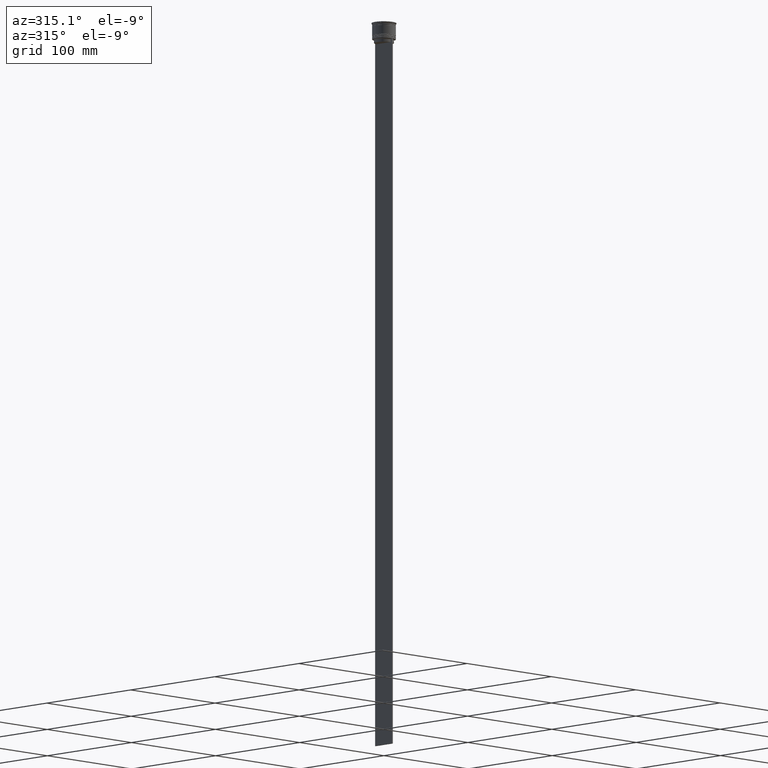
[diagram: clean part render]
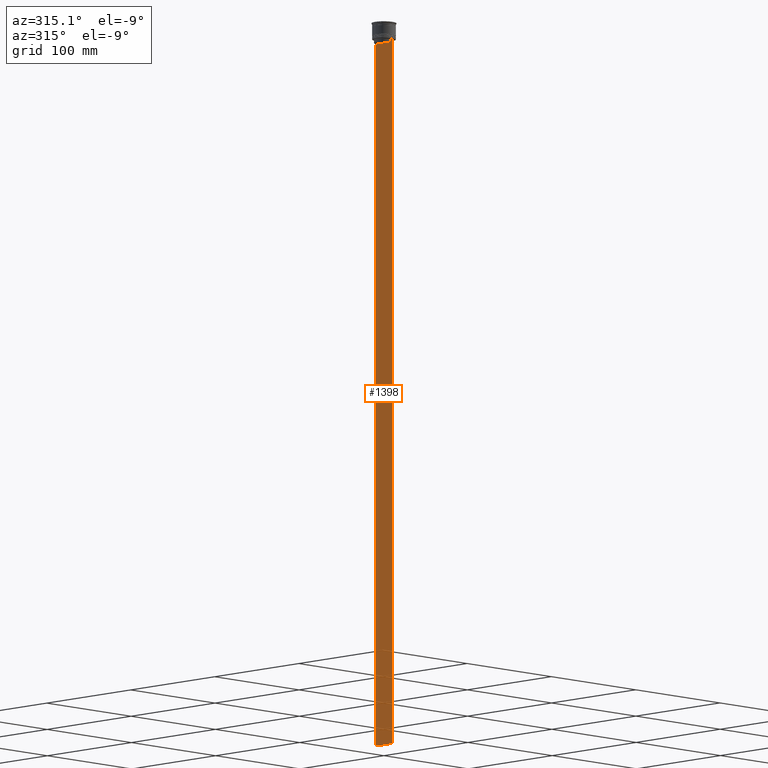
[diagram: same view with one face highlighted and labeled with its STEP entity id]
A machine part, auxiliary view. The second image highlights one B-rep face of the part: STEP entity #1398.
In plain terms, the highlighted planar face has unit normal (-1, 0, 0).
Its self-contained STEP definition (entity closure, byte-faithful):
#20 = VERTEX_POINT ( 'NONE', #281 ) ;
#43 = VERTEX_POINT ( 'NONE', #722 ) ;
#72 = ORIENTED_EDGE ( 'NONE', *, *, #1513, .F. ) ;
#88 = EDGE_CURVE ( 'NONE', #707, #43, #2531, .T. ) ;
#105 = EDGE_CURVE ( 'NONE', #1675, #403, #1651, .T. ) ;
#111 = CARTESIAN_POINT ( 'NONE',  ( -0.5000000000000000000, -10.00000000000000178, -614.0000000000000000 ) ) ;
#150 = ORIENTED_EDGE ( 'NONE', *, *, #88, .F. ) ;
#158 = VECTOR ( 'NONE', #2222, 1000.000000000000000 ) ;
#174 = EDGE_CURVE ( 'NONE', #707, #1900, #665, .T. ) ;
#215 = CARTESIAN_POINT ( 'NONE',  ( -0.5000000000000000000, -10.00000000000000178, 6.024984394500783047 ) ) ;
#240 = LINE ( 'NONE', #1833, #503 ) ;
#246 = DIRECTION ( 'NONE',  ( 0.000000000000000000, 0.000000000000000000, -1.000000000000000000 ) ) ;
#281 = CARTESIAN_POINT ( 'NONE',  ( -0.5000000000000000000, -10.00000000000000178, -14.00000000000000178 ) ) ;
#330 = VECTOR ( 'NONE', #839, 1000.000000000000000 ) ;
#403 = VERTEX_POINT ( 'NONE', #2348 ) ;
#406 = LINE ( 'NONE', #215, #1498 ) ;
#480 = ORIENTED_EDGE ( 'NONE', *, *, #1239, .F. ) ;
#503 = VECTOR ( 'NONE', #2670, 1000.000000000000000 ) ;
#560 = DIRECTION ( 'NONE',  ( 0.000000000000000000, -1.000000000000000000, 0.000000000000000000 ) ) ;
#598 = B_SPLINE_CURVE_WITH_KNOTS ( 'NONE', 3,
 ( #1161, #1981, #964, #2410 ),
 .UNSPECIFIED., .F., .F.,
 ( 4, 4 ),
 ( 0.03898465126933132324, 0.03969388910599660342 ),
 .UNSPECIFIED. ) ;
#633 = ORIENTED_EDGE ( 'NONE', *, *, #105, .F. ) ;
#634 = AXIS2_PLACEMENT_3D ( 'NONE', #1684, #2288, #1255 ) ;
#636 = DIRECTION ( 'NONE',  ( -0.000000000000000000, -0.000000000000000000, 1.000000000000000000 ) ) ;
#665 = LINE ( 'NONE', #2089, #1831 ) ;
#668 = ORIENTED_EDGE ( 'NONE', *, *, #2403, .F. ) ;
#707 = VERTEX_POINT ( 'NONE', #2161 ) ;
#722 = CARTESIAN_POINT ( 'NONE',  ( -0.5000000000000000000, 9.887365675446622149, -14.00000000000000178 ) ) ;
#749 = LINE ( 'NONE', #1984, #158 ) ;
#822 = ORIENTED_EDGE ( 'NONE', *, *, #2528, .F. ) ;
#831 = DIRECTION ( 'NONE',  ( 0.000000000000000000, -1.000000000000000000, 0.000000000000000000 ) ) ;
#839 = DIRECTION ( 'NONE',  ( 0.000000000000000000, -1.000000000000000000, 0.000000000000000000 ) ) ;
#875 = EDGE_CURVE ( 'NONE', #2470, #1098, #1349, .T. ) ;
#899 = CARTESIAN_POINT ( 'NONE',  ( -0.5000000000000000000, -10.00000000000000178, -614.0000000000000000 ) ) ;
#903 = CARTESIAN_POINT ( 'NONE',  ( -0.5000000000000000000, -8.385105843100616241, 0.000000000000000000 ) ) ;
#964 = CARTESIAN_POINT ( 'NONE',  ( -0.5000000000000000000, -8.719005764482790966, -14.16667454151159689 ) ) ;
#979 = VECTOR ( 'NONE', #560, 1000.000000000000000 ) ;
#997 = CARTESIAN_POINT ( 'NONE',  ( -0.5000000000000000000, 8.552060201981381837, -14.33334167021640226 ) ) ;
#1031 = EDGE_CURVE ( 'NONE', #403, #20, #2263, .T. ) ;
#1051 = EDGE_CURVE ( 'NONE', #1098, #2625, #240, .T. ) ;
#1095 = PLANE ( 'NONE',  #634 ) ;
#1098 = VERTEX_POINT ( 'NONE', #1813 ) ;
#1114 = VECTOR ( 'NONE', #636, 1000.000000000000000 ) ;
#1160 = VERTEX_POINT ( 'NONE', #1347 ) ;
#1161 = CARTESIAN_POINT ( 'NONE',  ( -0.5000000000000000000, -8.385105843100616241, -14.50000000000000000 ) ) ;
#1166 = VERTEX_POINT ( 'NONE', #899 ) ;
#1232 = CARTESIAN_POINT ( 'NONE',  ( -0.5000000000000000000, -10.00000000000000178, -14.00000000000000178 ) ) ;
#1239 = EDGE_CURVE ( 'NONE', #43, #2470, #2413, .T. ) ;
#1255 = DIRECTION ( 'NONE',  ( 0.000000000000000000, 0.000000000000000000, 1.000000000000000000 ) ) ;
#1257 = ORIENTED_EDGE ( 'NONE', *, *, #1649, .F. ) ;
#1303 = CARTESIAN_POINT ( 'NONE',  ( -0.5000000000000000000, -10.00000000000000178, -14.00000000000000178 ) ) ;
#1307 = EDGE_CURVE ( 'NONE', #2625, #2591, #749, .T. ) ;
#1347 = CARTESIAN_POINT ( 'NONE',  ( -0.5000000000000000000, -8.385105843100616241, -14.50000000000000000 ) ) ;
#1349 = B_SPLINE_CURVE_WITH_KNOTS ( 'NONE', 3,
 ( #1393, #2240, #997, #2416 ),
 .UNSPECIFIED., .F., .F.,
 ( 4, 4 ),
 ( 0.01511546479386908018, 0.01582316445439079997 ),
 .UNSPECIFIED. ) ;
#1388 = CARTESIAN_POINT ( 'NONE',  ( -0.5000000000000000000, 8.885943956609230199, -14.00000000000000178 ) ) ;
#1393 = CARTESIAN_POINT ( 'NONE',  ( -0.5000000000000000000, 8.885943956609230199, -14.00000000000000178 ) ) ;
#1398 = ADVANCED_FACE ( 'NONE', ( #2311 ), #1095, .T. ) ;
#1408 = VECTOR ( 'NONE', #831, 1000.000000000000000 ) ;
#1498 = VECTOR ( 'NONE', #2457, 1000.000000000000000 ) ;
#1513 = EDGE_CURVE ( 'NONE', #1166, #1900, #1923, .T. ) ;
#1555 = ORIENTED_EDGE ( 'NONE', *, *, #1307, .F. ) ;
#1557 = CARTESIAN_POINT ( 'NONE',  ( -0.5000000000000000000, 9.999999999999998224, -614.0000000000000000 ) ) ;
#1649 = EDGE_CURVE ( 'NONE', #1160, #1675, #598, .T. ) ;
#1651 = LINE ( 'NONE', #2503, #1408 ) ;
#1656 = ORIENTED_EDGE ( 'NONE', *, *, #1031, .F. ) ;
#1667 = LINE ( 'NONE', #903, #1114 ) ;
#1675 = VERTEX_POINT ( 'NONE', #1978 ) ;
#1684 = CARTESIAN_POINT ( 'NONE',  ( -0.5000000000000000000, -10.00000000000000178, 6.024984394500783047 ) ) ;
#1813 = CARTESIAN_POINT ( 'NONE',  ( -0.5000000000000000000, 8.385105843100616241, -14.50000000000000000 ) ) ;
#1816 = CARTESIAN_POINT ( 'NONE',  ( -0.5000000000000000000, 8.385105843100616241, -17.00000000000000000 ) ) ;
#1831 = VECTOR ( 'NONE', #246, 1000.000000000000000 ) ;
#1833 = CARTESIAN_POINT ( 'NONE',  ( -0.5000000000000000000, 8.385105843100616241, 0.000000000000000000 ) ) ;
#1834 = ORIENTED_EDGE ( 'NONE', *, *, #1051, .F. ) ;
#1900 = VERTEX_POINT ( 'NONE', #1557 ) ;
#1923 = LINE ( 'NONE', #111, #2229 ) ;
#1951 = ORIENTED_EDGE ( 'NONE', *, *, #174, .T. ) ;
#1978 = CARTESIAN_POINT ( 'NONE',  ( -0.5000000000000000000, -8.885943956609230199, -14.00000000000000178 ) ) ;
#1981 = CARTESIAN_POINT ( 'NONE',  ( -0.5000000000000000000, -8.552060194457769882, -14.33334167772667200 ) ) ;
#1984 = CARTESIAN_POINT ( 'NONE',  ( -0.5000000000000000000, 8.400000000000003908, -17.00000000000000000 ) ) ;
#2089 = CARTESIAN_POINT ( 'NONE',  ( -0.5000000000000000000, 9.999999999999998224, 6.024984394500783047 ) ) ;
#2128 = DIRECTION ( 'NONE',  ( 0.000000000000000000, -1.000000000000000000, 0.000000000000000000 ) ) ;
#2161 = CARTESIAN_POINT ( 'NONE',  ( -0.5000000000000000000, 9.999999999999994671, -14.00000000000000178 ) ) ;
#2222 = DIRECTION ( 'NONE',  ( 0.000000000000000000, -1.000000000000000000, 0.000000000000000000 ) ) ;
#2229 = VECTOR ( 'NONE', #2584, 1000.000000000000000 ) ;
#2240 = CARTESIAN_POINT ( 'NONE',  ( -0.5000000000000000000, 8.719005771582351016, -14.16667453442324742 ) ) ;
#2263 = LINE ( 'NONE', #1232, #330 ) ;
#2288 = DIRECTION ( 'NONE',  ( -1.000000000000000000, 0.000000000000000000, 0.000000000000000000 ) ) ;
#2308 = ORIENTED_EDGE ( 'NONE', *, *, #875, .F. ) ;
#2311 = FACE_OUTER_BOUND ( 'NONE', #2315, .T. ) ;
#2315 = EDGE_LOOP ( 'NONE', ( #2308, #480, #150, #1951, #72, #668, #1656, #633, #1257, #822, #1555, #1834 ) ) ;
#2348 = CARTESIAN_POINT ( 'NONE',  ( -0.5000000000000000000, -9.887365675446622149, -14.00000000000000178 ) ) ;
#2403 = EDGE_CURVE ( 'NONE', #20, #1166, #406, .T. ) ;
#2410 = CARTESIAN_POINT ( 'NONE',  ( -0.5000000000000000000, -8.885943956609230199, -14.00000000000000178 ) ) ;
#2413 = LINE ( 'NONE', #2590, #979 ) ;
#2416 = CARTESIAN_POINT ( 'NONE',  ( -0.5000000000000000000, 8.385105843100616241, -14.50000000000000000 ) ) ;
#2457 = DIRECTION ( 'NONE',  ( 0.000000000000000000, 0.000000000000000000, -1.000000000000000000 ) ) ;
#2470 = VERTEX_POINT ( 'NONE', #1388 ) ;
#2503 = CARTESIAN_POINT ( 'NONE',  ( -0.5000000000000000000, -10.00000000000000178, -14.00000000000000178 ) ) ;
#2528 = EDGE_CURVE ( 'NONE', #2591, #1160, #1667, .T. ) ;
#2531 = LINE ( 'NONE', #1303, #2585 ) ;
#2574 = CARTESIAN_POINT ( 'NONE',  ( -0.5000000000000000000, -8.385105843100616241, -17.00000000000000000 ) ) ;
#2584 = DIRECTION ( 'NONE',  ( 0.000000000000000000, 1.000000000000000000, 0.000000000000000000 ) ) ;
#2585 = VECTOR ( 'NONE', #2128, 1000.000000000000000 ) ;
#2590 = CARTESIAN_POINT ( 'NONE',  ( -0.5000000000000000000, -10.00000000000000178, -14.00000000000000178 ) ) ;
#2591 = VERTEX_POINT ( 'NONE', #2574 ) ;
#2625 = VERTEX_POINT ( 'NONE', #1816 ) ;
#2670 = DIRECTION ( 'NONE',  ( 0.000000000000000000, 0.000000000000000000, -1.000000000000000000 ) ) ;